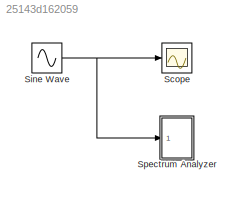
MODEL slx_25143d162059
KIND model
CONFIG AbsTol = auto
CONFIG EnableMultiTasking = off
CONFIG FixedStep = auto
CONFIG MaxStep = 0.02
CONFIG MinStep = auto
CONFIG RelTol = 1e-3
CONFIG SampleTimeConstraint = Unconstrained
CONFIG Solver = VariableStepAuto
CONFIG SolverName = VariableStepAuto
CONFIG StartTime = 0.0
CONFIG StopTime = 50.0
BLOCK [Scope] Scope
  Floating = off
  NumInputPorts = 1
  Ports = [1]
  ScopeSpecificationString = Simulink.scopes.TimeScopeBlockCfg('CurrentConfiguration', extmgr.ConfigurationSet(extmgr.Configuration('Core','General UI',true),extmgr.Configuration('Core','Source UI',true),extmgr.Configuration('Sources','WiredSimulink',true,'DataLoggingSaveFormat','Array','DataLoggingLimitDataPoints',true,'DataLoggingDecimation','1','DataLoggingDecimateData',true),extmgr.Configuration('Visuals','Time Domain',tr...<+1641ch>
BLOCK [Sin] Sine Wave
  Frequency = 5*pi
  Ports = [0, 1]
  SampleTime = 0
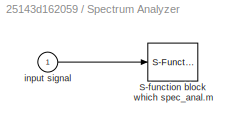
BLOCK [SubSystem] Spectrum Analyzer
  Ports = [1]
  RequestExecContextInheritance = off
  ShowPortLabels = none
BLOCK [S-Function] Spectrum Analyzer/S-function block which spec_anal.m
  EnableBusSupport = off
  FunctionName = SpecAnal
  Parameters = N,T_s,plot_period
  Ports = [1]
  SFcnIsStateOwnerBlock = off
  SFunctionDeploymentMode = off
BLOCK [Inport] Spectrum Analyzer/input signal
NET Sine Wave:1 -> Scope:1, Spectrum Analyzer:1
LINE Spectrum Analyzer/input signal:1 -> Spectrum Analyzer/S-function block which spec_anal.m:1
note: NET lines group one-source signal fan-out (src -> all destinations, sorted); 1:1 wires keep LINE
